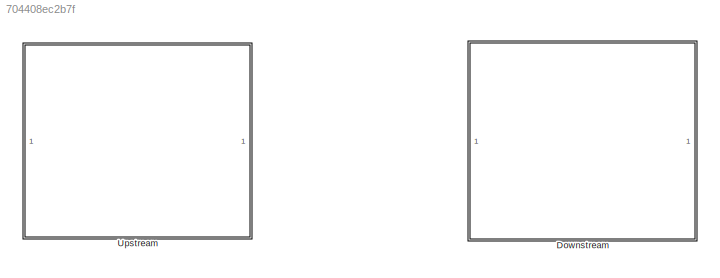
MODEL slx_704408ec2b7f
KIND model
CONFIG AbsTol = auto
CONFIG EnableMultiTasking = off
CONFIG FixedStep = auto
CONFIG MaxStep = auto
CONFIG MinStep = auto
CONFIG RelTol = 1e-3
CONFIG SampleTimeConstraint = Unconstrained
CONFIG SolverName = VariableStepAuto
CONFIG StartTime = 0.0
CONFIG StopTime = 10.0
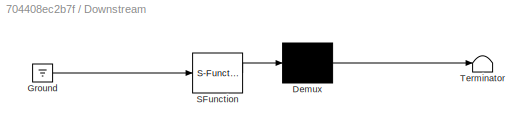
BLOCK [SubSystem] Downstream
  ErrorFcn = Stateflow.Translate.translate
  PermitHierarchicalResolution = ExplicitOnly
  Ports = []
  RequestExecContextInheritance = off
  SFBlockType = Chart
  TreatAsAtomicUnit = on
BLOCK [Demux] Downstream/ Demux 
  Outputs = 1
  Ports = [1, 1]
BLOCK [Ground] Downstream/ Ground 
BLOCK [S-Function] Downstream/ SFunction 
  EnableBusSupport = on
  FunctionName = sf_sfun
  PortCounts = [1 1]
  Ports = [1, 1]
  SFcnIsStateOwnerBlock = off
  SFunctionDeploymentMode = off
  Tag = Stateflow S-Function 1
BLOCK [Terminator] Downstream/ Terminator 
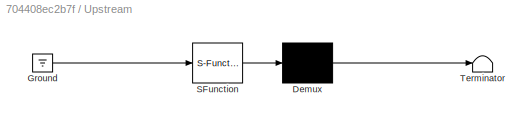
BLOCK [SubSystem] Upstream
  ErrorFcn = Stateflow.Translate.translate
  PermitHierarchicalResolution = ExplicitOnly
  Ports = []
  RequestExecContextInheritance = off
  SFBlockType = Chart
  TreatAsAtomicUnit = on
BLOCK [Demux] Upstream/ Demux 
  Outputs = 1
  Ports = [1, 1]
BLOCK [Ground] Upstream/ Ground 
BLOCK [S-Function] Upstream/ SFunction 
  EnableBusSupport = on
  FunctionName = sf_sfun
  PortCounts = [1 1]
  Ports = [1, 1]
  SFcnIsStateOwnerBlock = off
  SFunctionDeploymentMode = off
  Tag = Stateflow S-Function 3
BLOCK [Terminator] Upstream/ Terminator 
CHART Downstream states=4 transitions=11
  STATE_LABEL 'D1'
  STATE_LABEL 'D2'
  STATE_LABEL 'D3'
  STATE_LABEL 'D4'
CHART Upstream states=16 transitions=121
  STATE_LABEL 'a21'
  STATE_LABEL 'a11'
  STATE_LABEL 'a31'
  STATE_LABEL 'a41'
  STATE_LABEL 'a12'
  STATE_LABEL 'a22'
  STATE_LABEL 'a32'
  STATE_LABEL 'a42'
  STATE_LABEL 'a33'
  STATE_LABEL 'a23'
  STATE_LABEL 'a43'
  STATE_LABEL 'a13'
  STATE_LABEL 'a44'
  STATE_LABEL 'a14'
  STATE_LABEL 'a24'
  STATE_LABEL 'a34'
CHART  states=0 transitions=0
CHART  states=0 transitions=0
